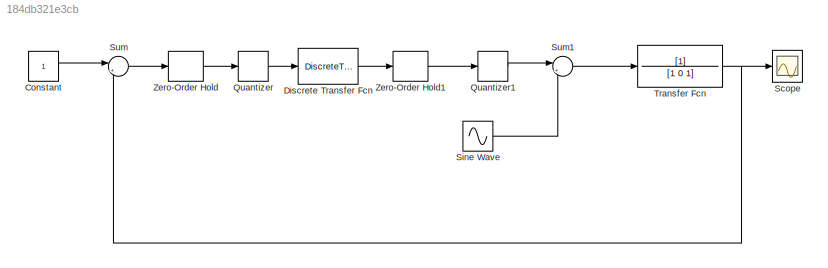
MODEL slx_184db321e3cb
KIND model
CONFIG AbsTol = auto
CONFIG EnableMultiTasking = off
CONFIG FixedStep = auto
CONFIG MaxStep = auto
CONFIG MinStep = auto
CONFIG RelTol = 1e-3
CONFIG SampleTimeConstraint = Unconstrained
CONFIG Solver = VariableStepAuto
CONFIG SolverName = VariableStepAuto
CONFIG StartTime = 0.0
CONFIG StopTime = 10.0
BLOCK [Constant] Constant
BLOCK [DiscreteTransferFcn] Discrete Transfer Fcn
  Denominator = quant([1 -0.3099 -0.5444 0.4636 0.4143 -1.024], 2^-16)
  InputPortMap = u0
  Numerator = quant([209.7 -671.5 954.7 -693.3 204.8], 2^-16)
  Ports = [1, 1]
BLOCK [Quantizer] Quantizer
  QuantizationInterval = 0.01
BLOCK [Quantizer] Quantizer1
  QuantizationInterval = 0.01
BLOCK [Scope] Scope
  Floating = off
  NumInputPorts = 1
  Ports = [1]
  ScopeSpecificationString = Simulink.scopes.TimeScopeBlockCfg('CurrentConfiguration', extmgr.ConfigurationSet(extmgr.Configuration('Core','General UI',true),extmgr.Configuration('Core','Source UI',true),extmgr.Configuration('Sources','WiredSimulink',true),extmgr.Configuration('Visuals','Time Domain',true,'SerializedDisplays',{struct('MinYLimReal','-0.2554','MaxYLimReal','2.28272','YLabelReal','','MinYLimMag','0.00000','MaxYL...<+1330ch>
BLOCK [Sin] Sine Wave
  Frequency = 10
  Ports = [0, 1]
  SampleTime = 0
BLOCK [Sum] Sum
  IconShape = round
  InputSameDT = off
  Inputs = |+-
  OutDataTypeStr = Inherit: Inherit via internal rule
  Ports = [2, 1]
  SaturateOnIntegerOverflow = off
BLOCK [Sum] Sum1
  IconShape = round
  InputSameDT = off
  Inputs = |+-
  OutDataTypeStr = Inherit: Inherit via internal rule
  Ports = [2, 1]
  SaturateOnIntegerOverflow = off
BLOCK [TransferFcn] Transfer Fcn
  Denominator = [1 0 1]
BLOCK [ZeroOrderHold] Zero-Order Hold
  SampleTime = 0.1
BLOCK [ZeroOrderHold] Zero-Order Hold1
  SampleTime = -1
LINE Constant:1 -> Sum:1
LINE Discrete Transfer Fcn:1 -> Zero-Order Hold1:1
LINE Quantizer1:1 -> Sum1:1
LINE Quantizer:1 -> Discrete Transfer Fcn:1
LINE Sine Wave:1 -> Sum1:2
LINE Sum1:1 -> Transfer Fcn:1
LINE Sum:1 -> Zero-Order Hold:1
NET Transfer Fcn:1 -> Scope:1, Sum:2
LINE Zero-Order Hold1:1 -> Quantizer1:1
LINE Zero-Order Hold:1 -> Quantizer:1
note: NET lines group one-source signal fan-out (src -> all destinations, sorted); 1:1 wires keep LINE
